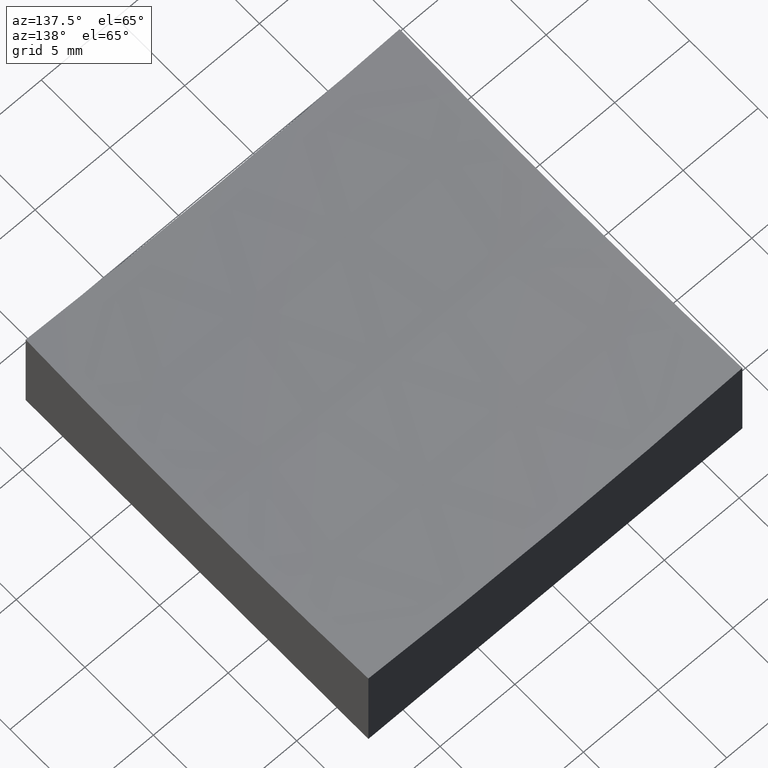
[diagram: clean part render]
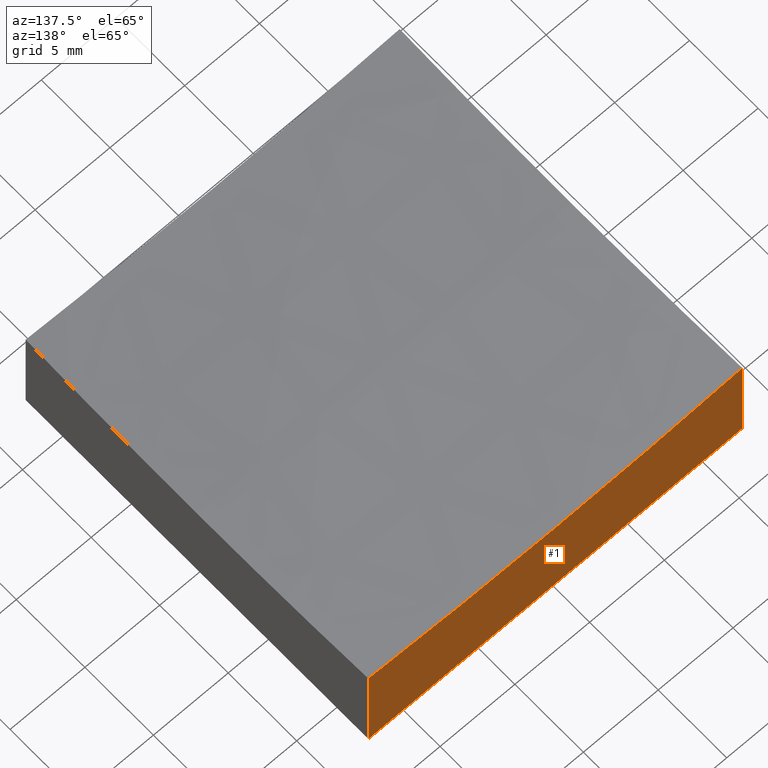
[diagram: same view with one face highlighted and labeled with its STEP entity id]
A machine part, auxiliary view. The second image highlights one B-rep face of the part: STEP entity #1.
In plain terms, the highlighted planar face has unit normal (0, 1, 0).
Its self-contained STEP definition (entity closure, byte-faithful):
#1 = ADVANCED_FACE ( 'NONE', ( #229 ), #5, .T. ) ;
#5 = PLANE ( 'NONE',  #76 ) ;
#8 = DIRECTION ( 'NONE',  ( 0.0000000000000000000, -0.0000000000000000000, 1.000000000000000000 ) ) ;
#12 = ORIENTED_EDGE ( 'NONE', *, *, #26, .F. ) ;
#17 = DIRECTION ( 'NONE',  ( 1.000000000000000000, 0.0000000000000000000, 0.0000000000000000000 ) ) ;
#19 = AXIS2_PLACEMENT_3D ( 'NONE', #135, #177, #200 ) ;
#24 = CARTESIAN_POINT ( 'NONE',  ( -12.50000000000000000, 12.50000000000000000, 0.0000000000000000000 ) ) ;
#26 = EDGE_CURVE ( 'NONE', #61, #98, #68, .T. ) ;
#44 = CARTESIAN_POINT ( 'NONE',  ( -12.50000000000000000, 12.50000000000000000, 20.00000000000000000 ) ) ;
#46 = ORIENTED_EDGE ( 'NONE', *, *, #249, .F. ) ;
#52 = CARTESIAN_POINT ( 'NONE',  ( -12.50000000000000000, 12.50000000000000000, 0.0000000000000000000 ) ) ;
#60 = CARTESIAN_POINT ( 'NONE',  ( 12.50000000000000000, 12.50000000000000000, 7.045308902337731993 ) ) ;
#61 = VERTEX_POINT ( 'NONE', #60 ) ;
#66 = CARTESIAN_POINT ( 'NONE',  ( 12.50000000000000000, 12.50000000000000000, 20.00000000000000000 ) ) ;
#67 = VECTOR ( 'NONE', #125, 1000.000000000000000 ) ;
#68 = CIRCLE ( 'NONE', #19, 149.4782592887674184 ) ;
#69 = LINE ( 'NONE', #52, #205 ) ;
#76 = AXIS2_PLACEMENT_3D ( 'NONE', #44, #112, #8 ) ;
#81 = ORIENTED_EDGE ( 'NONE', *, *, #134, .F. ) ;
#98 = VERTEX_POINT ( 'NONE', #234 ) ;
#101 = EDGE_LOOP ( 'NONE', ( #12, #115, #81, #46 ) ) ;
#112 = DIRECTION ( 'NONE',  ( 0.0000000000000000000, 1.000000000000000000, 0.0000000000000000000 ) ) ;
#115 = ORIENTED_EDGE ( 'NONE', *, *, #157, .T. ) ;
#125 = DIRECTION ( 'NONE',  ( -0.0000000000000000000, -0.0000000000000000000, -1.000000000000000000 ) ) ;
#134 = EDGE_CURVE ( 'NONE', #226, #206, #69, .T. ) ;
#135 = CARTESIAN_POINT ( 'NONE',  ( 1.910449006669871151E-14, 12.50000000000000000, 156.0000000000000000 ) ) ;
#157 = EDGE_CURVE ( 'NONE', #61, #206, #225, .T. ) ;
#177 = DIRECTION ( 'NONE',  ( 0.0000000000000000000, 1.000000000000000000, 0.0000000000000000000 ) ) ;
#189 = LINE ( 'NONE', #193, #67 ) ;
#193 = CARTESIAN_POINT ( 'NONE',  ( -12.50000000000000000, 12.50000000000000000, 20.00000000000000000 ) ) ;
#200 = DIRECTION ( 'NONE',  ( 0.0000000000000000000, 0.0000000000000000000, 1.000000000000000000 ) ) ;
#204 = DIRECTION ( 'NONE',  ( -0.0000000000000000000, -0.0000000000000000000, -1.000000000000000000 ) ) ;
#205 = VECTOR ( 'NONE', #17, 1000.000000000000000 ) ;
#206 = VERTEX_POINT ( 'NONE', #215 ) ;
#215 = CARTESIAN_POINT ( 'NONE',  ( 12.50000000000000000, 12.50000000000000000, 0.0000000000000000000 ) ) ;
#219 = VECTOR ( 'NONE', #204, 1000.000000000000000 ) ;
#225 = LINE ( 'NONE', #66, #219 ) ;
#226 = VERTEX_POINT ( 'NONE', #24 ) ;
#229 = FACE_OUTER_BOUND ( 'NONE', #101, .T. ) ;
#234 = CARTESIAN_POINT ( 'NONE',  ( -12.50000000000000000, 12.50000000000000000, 7.045308902337731993 ) ) ;
#249 = EDGE_CURVE ( 'NONE', #98, #226, #189, .T. ) ;